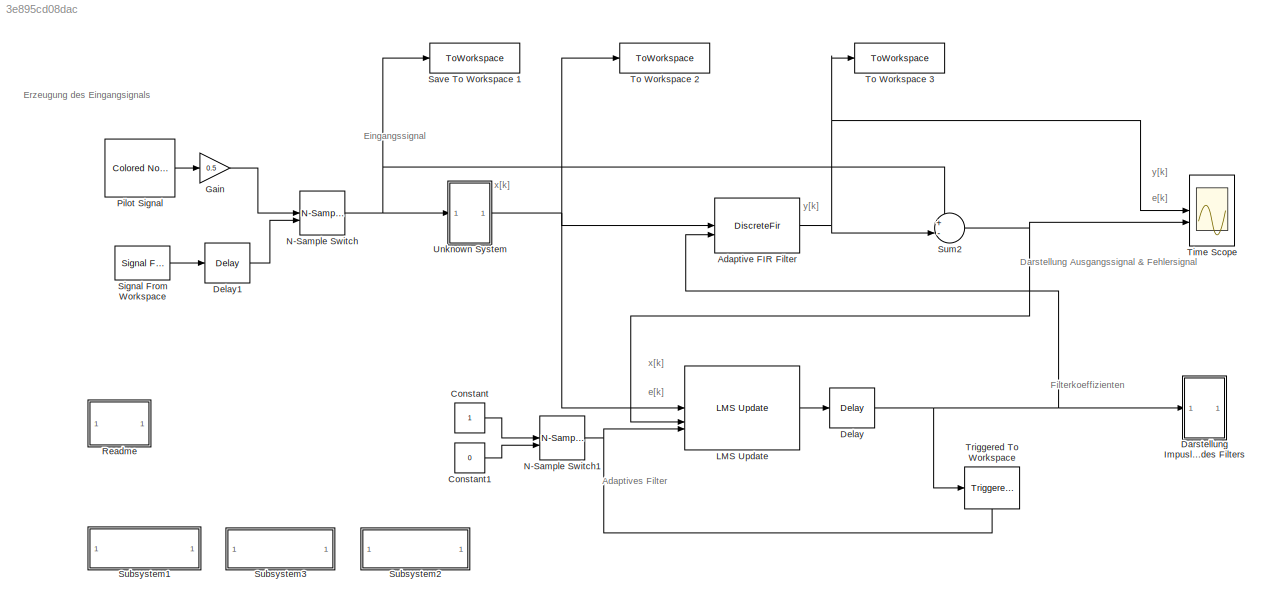
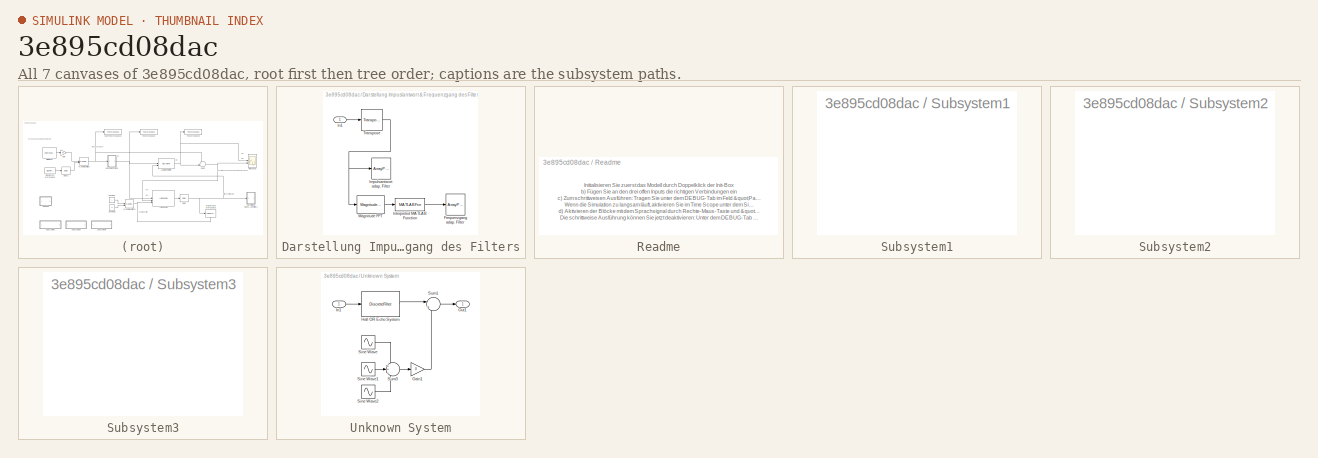
[diagram: thumbnail index - all 7 canvases of the model, root first then tree order]
MODEL slx_3e895cd08dac
KIND model
CONFIG AbsTol = auto
CONFIG EnableMultiTasking = off
CONFIG FixedStep = auto
CONFIG MaxStep = auto
CONFIG MinStep = auto
CONFIG RelTol = 1e-3
CONFIG SampleTimeConstraint = Unconstrained
CONFIG SolverName = FixedStepDiscrete
CONFIG StartTime = 0.0
CONFIG StopTime = TSim
WORKSPACE source: mxarray member
WORKSPACE LengthOfPilot = 16000
BLOCK [DiscreteFir] Adaptive FIR Filter
  CoefSource = Input port
  InputPortMap = u0,u1
  InputProcessing = Columns as channels (frame based)
  OutputPortMap = o0
BLOCK [Constant] Constant
BLOCK [Constant] Constant1
  Value = 0
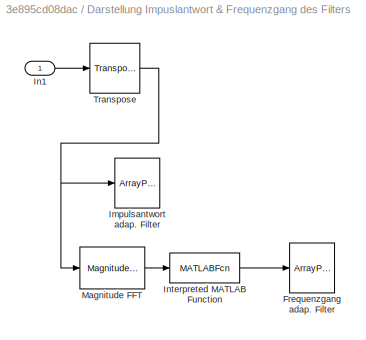
BLOCK [SubSystem] Darstellung Impuslantwort & Frequenzgang des Filters
BLOCK [ArrayPlot] Darstellung Impuslantwort & Frequenzgang des Filters/Frequenzgang adap. Filter
  AxesScaling = Manual
  GraphicalSettings = {"Style":{"BackgroundColor":[0.1568627450980392,0.1568627450980392,0.1568627450980392],"AxesColor":[0,0,0],"LabelsColor":[0.6862745098039216,0.6862745098039216,0.6862745098039216],"LineStyle":["-"],"LineColor":[[1,1,0.06666666666666667]],"LineWidth":[1.5],"Marker":["none"],"FontSize":"small"},"Cursors":{"Enabled":false,"XLocation":[2,8],"YLocation":[2,8],"SnapToData":false,"LockSpacing":false,"Sho...<+343ch>
  PlotType = Line
  SampleIncrement = 7.8125
  ScopeFrameLocation = window
  Visible = on
  WasSavedAsWebScope = on
  WindowPosition = [1892.000000,842.000000,1050.000000,318.000000,]
  XLabel = Frequency (Hz)
  YLimits = [0.001,10]
  YScale = Log
BLOCK [ArrayPlot] Darstellung Impuslantwort & Frequenzgang des Filters/Impulsantwort adap. Filter
  AxesScaling = Manual
  GraphicalSettings = {"Style":{"BackgroundColor":[0.1568627450980392,0.1568627450980392,0.1568627450980392],"AxesColor":[0,0,0],"LabelsColor":[0.6862745098039216,0.6862745098039216,0.6862745098039216],"LineStyle":["-"],"LineColor":[[1,1,0.06666666666666667]],"LineWidth":[1.5],"Marker":["o"],"FontSize":"small"},"Cursors":{"Enabled":false,"XLocation":[2,8],"YLocation":[2,8],"SnapToData":false,"LockSpacing":false,"ShowTe...<+340ch>
  ScopeFrameLocation = window
  Visible = on
  WasSavedAsWebScope = on
  WindowPosition = [1897.000000,427.000000,1046.000000,396.000000,]
  YLimits = [-1,1.2]
BLOCK [Inport] Darstellung Impuslantwort & Frequenzgang des Filters/In1
BLOCK [MATLABFcn] Darstellung Impuslantwort & Frequenzgang des Filters/Interpreted MATLAB Function
  MATLABFcn = abs(freqz(u,1))
BLOCK [Reference] Darstellung Impuslantwort & Frequenzgang des Filters/Magnitude FFT  REF=dspspect3/Magnitude
FFT
  Commented = through
  SourceBlock = dspspect3/Magnitude\nFFT
  SourceType = Magnitude FFT
BLOCK [Reference] Darstellung Impuslantwort & Frequenzgang des Filters/Transpose  REF=matrix_library/Transpose
  SourceBlock = matrix_library/Transpose
  SourceType = Transpose
BLOCK [Delay] Delay
  DelayLength = 1
  InputPortMap = u0
  InputProcessing = Columns as channels (frame based)
BLOCK [Delay] Delay1
  DelayLength = lenPilotSig
  InputPortMap = u0
  InputProcessing = Columns as channels (frame based)
BLOCK [Gain] Gain
  Gain = 0.5
BLOCK [Reference] LMS Update  REF=dspadpt3/LMS Update
  SourceBlock = dspadpt3/LMS Update
  SourceType = dsp.simulink.LMSUpdate
BLOCK [Reference] N-Sample Switch  REF=dspswit3/N-Sample
Switch
  SourceBlock = dspswit3/N-Sample\nSwitch
  SourceType = N-Sample Switch
BLOCK [Reference] N-Sample Switch1  REF=dspswit3/N-Sample
Switch
  SourceBlock = dspswit3/N-Sample\nSwitch
  SourceType = N-Sample Switch
BLOCK [Reference] Pilot Signal  REF=dspsrcs4/Colored Noise
  SourceBlock = dspsrcs4/Colored Noise
  SourceType = dsp.simulink.ColoredNoise
BLOCK [SubSystem] Readme
BLOCK [ToWorkspace] Save To Workspace 1
  FixptAsFi = on
  MaxDataPoints = inf
  SampleTime = -1
  Save2DSignal = 2-D array (concatenate along first dimension)
  VariableName = org
BLOCK [Reference] Signal From Workspace  REF=dspsrcs4/Signal From
Workspace
  SourceBlock = dspsrcs4/Signal From\nWorkspace
  SourceType = Signal From Workspace
BLOCK [SubSystem] Subsystem1
  OpenFcn = lenPilotSig= 16000; \n[s,fs]=audioread('bbauer8s.wav'); \nTSim =lenPilotSig/fs + length(s)/fs;\npauseTimes=[0.05 0.1 0.2 0.4 0.8 1.4 2];
BLOCK [SubSystem] Subsystem2
  OpenFcn = if exist('out','var'), freqResponse_Hall(); \nelse errordlg('You must run the simulation first.','DSP Blockset Demo Error'); end
BLOCK [SubSystem] Subsystem3
  OpenFcn = if exist('out','var'), SpectrogramExample(out.org, fs); SpectrogramExample(out.x, fs); SpectrogramExample(out.y, fs); \nelse errordlg('You must run the simulation first.','DSP Blockset Demo Error'); end
BLOCK [Sum] Sum2
  InputSameDT = on
  Inputs = +-|
  OutDataTypeStr = Inherit: Same as first input
  SaturateOnIntegerOverflow = on
BLOCK [Scope] Time Scope
  DefaultConfigurationName = spbscopes.TimeScopeBlockCfg
  Floating = off
  NumInputPorts = 2
  ScopeSpecificationString = spbscopes.TimeScopeBlockCfg('CurrentConfiguration', extmgr.ConfigurationSet(extmgr.Configuration('Core','General UI',true),extmgr.Configuration('Core','Source UI',true),extmgr.Configuration('Sources','WiredSimulink',true,'DataLoggingVariableName','ScopeData1'),extmgr.Configuration('Visuals','Time Domain',true,'DisplayLayoutDimensions',[2 1],'DisplayPropertyDefaults',struct('YLabelReal','Amplitude'...<+2168ch>
  UserDataPersistent = on
BLOCK [ToWorkspace] To Workspace 2
  FixptAsFi = on
  MaxDataPoints = inf
  SampleTime = -1
  Save2DSignal = 2-D array (concatenate along first dimension)
  VariableName = x
BLOCK [ToWorkspace] To Workspace 3
  FixptAsFi = on
  MaxDataPoints = inf
  SampleTime = -1
  Save2DSignal = 2-D array (concatenate along first dimension)
  VariableName = y
BLOCK [Reference] Triggered To Workspace  REF=dspsnks4/Triggered
To Workspace
  NameLocation = top
  SourceBlock = dspsnks4/Triggered\nTo Workspace
  SourceType = Triggered To Workspace
  UserDataPersistent = on
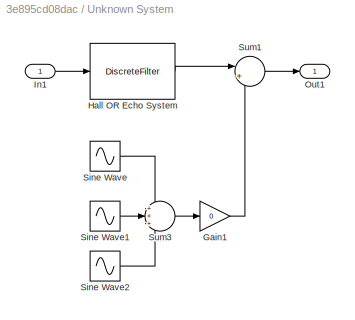
BLOCK [SubSystem] Unknown System
BLOCK [Gain] Unknown System/Gain1
  Gain = 0
BLOCK [DiscreteFilter] Unknown System/Hall OR Echo System
  Denominator = [1 0 0 0 0 0 0 0 -0.9]
  FilterStructure = Direct form II transposed
  InputPortMap = u0
  InputProcessing = Columns as channels (frame based)
  Numerator = 1
  a0EqualsOne = on
BLOCK [Inport] Unknown System/In1
BLOCK [Outport] Unknown System/Out1
BLOCK [Sin] Unknown System/Sine Wave
  Amplitude = 1./7.
  Frequency = 25/40*pi*8000
  SampleTime = 1/fs
BLOCK [Sin] Unknown System/Sine Wave1
  Amplitude = 1./7.
  Frequency = 25.1/40*pi*8000
  SampleTime = 1/fs
BLOCK [Sin] Unknown System/Sine Wave2
  Amplitude = 1./7.
  Frequency = 24.9/40*pi*8000
  SampleTime = 1/fs
BLOCK [Sum] Unknown System/Sum1
  InputSameDT = on
  Inputs = |++
  OutDataTypeStr = Inherit: Same as first input
  SaturateOnIntegerOverflow = on
BLOCK [Sum] Unknown System/Sum3
  InputSameDT = on
  Inputs = +++
  OutDataTypeStr = Inherit: Same as first input
  SaturateOnIntegerOverflow = on
ANNOTATION (root): Adaptives Filter
ANNOTATION (root): Darstellung Ausgangssignal & Fehlersignal
ANNOTATION (root): Eingangssignal
ANNOTATION (root): Erzeugung des Eingangsignals
ANNOTATION (root): Filterkoeffizienten
ANNOTATION (root): e[k]
ANNOTATION (root): x[k]
ANNOTATION (root): y[k]
ANNOTATION Readme: Initialisieren Sie zuerst das Modell durch Doppelklick der Init-Box b) Fügen Sie an den drei offen Inputs die richtigen Verbindungen ein c) Zum schrittweisen Ausführen: Tragen Sie unter dem DEBUG-Tab im Feld "Pause Time" den Vektor pauseTimes ein. Wenn die Simulation zu langsam läuft, aktivieren Sie im Time Scope unter dem Simulation-Tab den Eintrag "Reduce Updates To Improve Performance" d) Aktiv...<+386ch>
NET Adaptive FIR Filter:1 -> Sum2:2, Time Scope:1, To Workspace 3:1
LINE Constant1:1 -> N-Sample Switch1:2
LINE Constant:1 -> N-Sample Switch1:1
LINE Darstellung Impuslantwort & Frequenzgang des Filters/In1:1 -> Darstellung Impuslantwort & Frequenzgang des Filters/Transpose:1
LINE Darstellung Impuslantwort & Frequenzgang des Filters/Interpreted MATLAB Function:1 -> Darstellung Impuslantwort & Frequenzgang des Filters/Frequenzgang adap. Filter:1
LINE Darstellung Impuslantwort & Frequenzgang des Filters/Magnitude FFT:1 -> Darstellung Impuslantwort & Frequenzgang des Filters/Interpreted MATLAB Function:1
NET Darstellung Impuslantwort & Frequenzgang des Filters/Transpose:1 -> Darstellung Impuslantwort & Frequenzgang des Filters/Impulsantwort adap. Filter:1, Darstellung Impuslantwort & Frequenzgang des Filters/Magnitude FFT:1
LINE Delay1:1 -> N-Sample Switch:2
NET Delay:1 -> Adaptive FIR Filter:2, Darstellung Impuslantwort & Frequenzgang des Filters:1, Triggered To Workspace:1
LINE Gain:1 -> N-Sample Switch:1
LINE LMS Update:1 -> Delay:1
NET N-Sample Switch1:1 -> LMS Update:3, Triggered To Workspace:trigger
NET N-Sample Switch:1 -> Save To Workspace 1:1, Sum2:1, Unknown System:1
LINE Pilot Signal:1 -> Gain:1
LINE Signal From Workspace:1 -> Delay1:1
NET Sum2:1 -> LMS Update:2, Time Scope:2
LINE Unknown System/Gain1:1 -> Unknown System/Sum1:2
LINE Unknown System/Hall OR Echo System:1 -> Unknown System/Sum1:1
LINE Unknown System/In1:1 -> Unknown System/Hall OR Echo System:1
LINE Unknown System/Sine Wave1:1 -> Unknown System/Sum3:2
LINE Unknown System/Sine Wave2:1 -> Unknown System/Sum3:3
LINE Unknown System/Sine Wave:1 -> Unknown System/Sum3:1
LINE Unknown System/Sum1:1 -> Unknown System/Out1:1
LINE Unknown System/Sum3:1 -> Unknown System/Gain1:1
NET Unknown System:1 -> Adaptive FIR Filter:1, LMS Update:1, To Workspace 2:1
note: NET lines group one-source signal fan-out (src -> all destinations, sorted); 1:1 wires keep LINE
